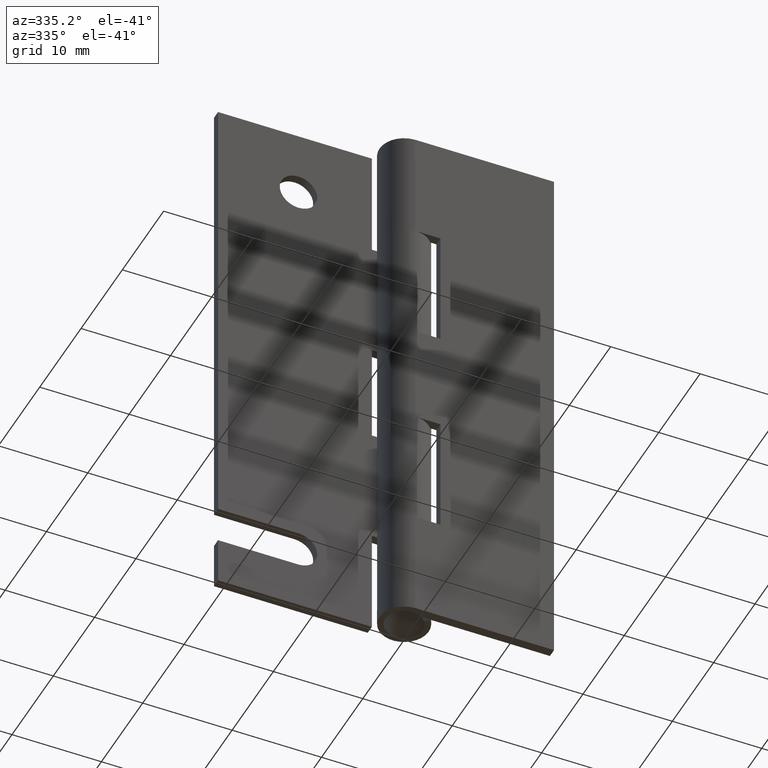
[diagram: clean part render]
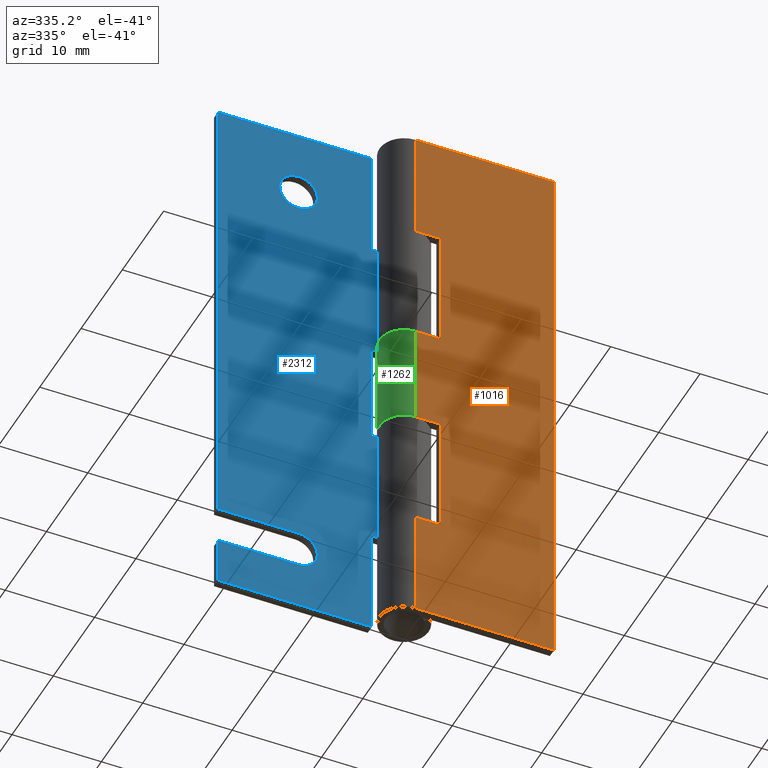
[diagram: same view with three faces highlighted in distinct colors, each labeled with its STEP entity id]
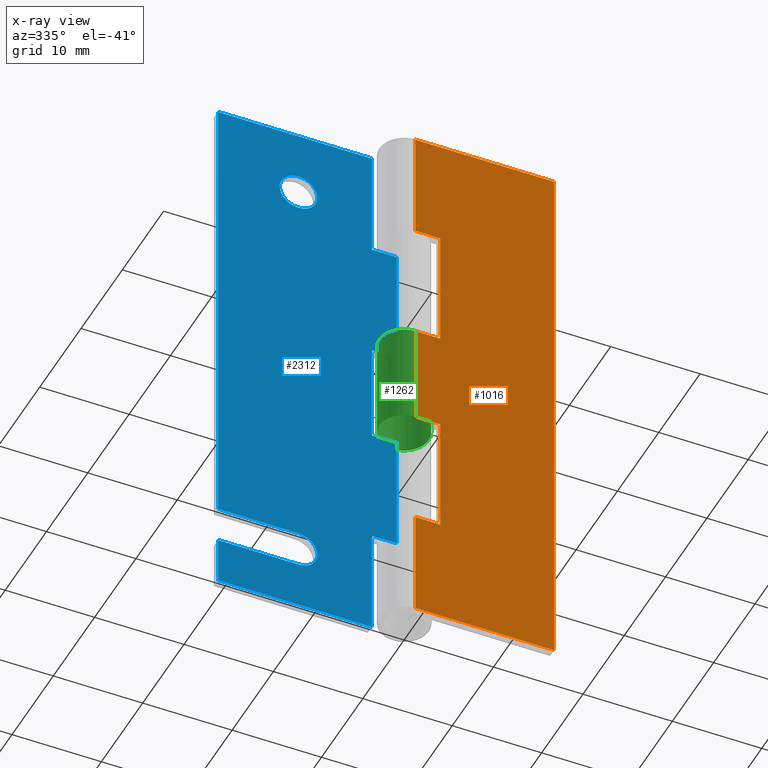
[diagram: x-ray of the same camera — body ghosted, the three highlighted faces saturated]
A machine part, auxiliary view with three faces highlighted in distinct colors.
The next image is the same camera in x-ray (body ghosted, the three faces saturated) — at least one of them is partly hidden behind the body in this view.
Their STEP definitions:

[orange] entity #1016 — the highlighted face is a freeform B-spline surface patch.
#430=CARTESIAN_POINT('',(0.0,-2.750000000000000,25.750000000000000));
#431=VERTEX_POINT('',#430);
#488=CARTESIAN_POINT('',(2.800000000000000,-2.750000000000000,25.750000000000000));
#489=VERTEX_POINT('',#488);
#495=CARTESIAN_POINT('',(2.800000000000000,-2.750000000000000,25.750000000000000));
#496=CARTESIAN_POINT('',(0.0,-2.750000000000000,25.750000000000000));
#497=QUASI_UNIFORM_CURVE('',1,(#495,#496),.UNSPECIFIED.,.F.,.U.);
#498=EDGE_CURVE('',#489,#431,#497,.T.);
#515=CARTESIAN_POINT('',(2.800000000000000,-2.750000000000000,12.250000000000000));
#516=VERTEX_POINT('',#515);
#522=CARTESIAN_POINT('',(2.800000000000000,-2.750000000000000,12.250000000000000));
#523=CARTESIAN_POINT('',(2.800000000000000,-2.750000000000000,25.750000000000000));
#524=QUASI_UNIFORM_CURVE('',1,(#522,#523),.UNSPECIFIED.,.F.,.U.);
#525=EDGE_CURVE('',#516,#489,#524,.T.);
#538=CARTESIAN_POINT('',(0.0,-2.750000000000000,12.250000000000000));
#539=VERTEX_POINT('',#538);
#559=CARTESIAN_POINT('',(0.0,-2.750000000000000,12.250000000000000));
#560=CARTESIAN_POINT('',(2.800000000000000,-2.750000000000000,12.250000000000000));
#561=QUASI_UNIFORM_CURVE('',1,(#559,#560),.UNSPECIFIED.,.F.,.U.);
#562=EDGE_CURVE('',#539,#516,#561,.T.);
#608=CARTESIAN_POINT('',(0.0,-2.750000000000000,37.250000000000000));
#609=VERTEX_POINT('',#608);
#629=CARTESIAN_POINT('',(2.800000000000000,-2.750000000000000,37.250000000000000));
#630=VERTEX_POINT('',#629);
#631=CARTESIAN_POINT('',(2.800000000000000,-2.750000000000000,37.250000000000000));
#632=CARTESIAN_POINT('',(0.0,-2.750000000000000,37.250000000000000));
#633=QUASI_UNIFORM_CURVE('',1,(#631,#632),.UNSPECIFIED.,.F.,.U.);
#634=EDGE_CURVE('',#630,#609,#633,.T.);
#692=CARTESIAN_POINT('',(2.800000000000000,-2.750000000000000,50.750000000000000));
#693=VERTEX_POINT('',#692);
#694=CARTESIAN_POINT('',(2.800000000000000,-2.750000000000000,50.750000000000000));
#695=CARTESIAN_POINT('',(2.800000000000000,-2.750000000000000,37.250000000000000));
#696=QUASI_UNIFORM_CURVE('',1,(#694,#695),.UNSPECIFIED.,.F.,.U.);
#697=EDGE_CURVE('',#693,#630,#696,.T.);
#712=CARTESIAN_POINT('',(0.0,-2.750000000000000,50.750000000000000));
#713=VERTEX_POINT('',#712);
#769=CARTESIAN_POINT('',(0.0,-2.750000000000000,50.750000000000000));
#770=CARTESIAN_POINT('',(2.800000000000000,-2.750000000000000,50.750000000000000));
#771=QUASI_UNIFORM_CURVE('',1,(#769,#770),.UNSPECIFIED.,.F.,.U.);
#772=EDGE_CURVE('',#713,#693,#771,.T.);
#812=CARTESIAN_POINT('',(15.500000000000000,-2.750000000000000,0.0));
#813=VERTEX_POINT('',#812);
#819=CARTESIAN_POINT('',(0.0,-2.750000000000000,0.0));
#820=VERTEX_POINT('',#819);
#821=CARTESIAN_POINT('',(15.500000000000000,-2.750000000000000,0.0));
#822=CARTESIAN_POINT('',(0.0,-2.750000000000000,0.0));
#823=QUASI_UNIFORM_CURVE('',1,(#821,#822),.UNSPECIFIED.,.F.,.U.);
#824=EDGE_CURVE('',#813,#820,#823,.T.);
#890=CARTESIAN_POINT('',(0.0,-2.750000000000000,63.0));
#891=VERTEX_POINT('',#890);
#911=CARTESIAN_POINT('',(15.500000000000000,-2.750000000000000,63.0));
#912=VERTEX_POINT('',#911);
#913=CARTESIAN_POINT('',(15.500000000000000,-2.750000000000000,63.0));
#914=CARTESIAN_POINT('',(0.0,-2.750000000000000,63.0));
#915=QUASI_UNIFORM_CURVE('',1,(#913,#914),.UNSPECIFIED.,.F.,.U.);
#916=EDGE_CURVE('',#912,#891,#915,.T.);
#977=CARTESIAN_POINT('',(15.500000000000000,-2.750000000000000,63.0));
#978=CARTESIAN_POINT('',(15.500000000000000,-2.750000000000000,0.0));
#979=QUASI_UNIFORM_CURVE('',1,(#977,#978),.UNSPECIFIED.,.F.,.U.);
#980=EDGE_CURVE('',#912,#813,#979,.T.);
#985=CARTESIAN_POINT('',(-0.774224969957992,-2.750000000000000,66.146849877893786));
#986=CARTESIAN_POINT('',(-0.774224969957992,-2.750000000000000,-3.146851567685451));
#987=CARTESIAN_POINT('',(16.274225385700390,-2.750000000000000,66.146849877893786));
#988=CARTESIAN_POINT('',(16.274225385700390,-2.750000000000000,-3.146851567685451));
#989=B_SPLINE_SURFACE_WITH_KNOTS('',1,1,((#985,#987),(#986,#988)),.UNSPECIFIED.,.F.,.F.,.U.,(2,2),(2,2),(0.0,69.293701445579231),(0.0,17.048450355658382),.UNSPECIFIED.);
#990=ORIENTED_EDGE('',*,*,#562,.F.);
#991=CARTESIAN_POINT('',(0.0,-2.750000000000000,12.250000000000000));
#992=CARTESIAN_POINT('',(0.0,-2.750000000000000,0.0));
#993=QUASI_UNIFORM_CURVE('',1,(#991,#992),.UNSPECIFIED.,.F.,.U.);
#994=EDGE_CURVE('',#539,#820,#993,.T.);
#995=ORIENTED_EDGE('',*,*,#994,.T.);
#996=ORIENTED_EDGE('',*,*,#824,.F.);
#997=ORIENTED_EDGE('',*,*,#980,.F.);
#998=ORIENTED_EDGE('',*,*,#916,.T.);
#999=CARTESIAN_POINT('',(0.0,-2.750000000000000,63.0));
#1000=CARTESIAN_POINT('',(0.0,-2.750000000000000,50.750000000000000));
#1001=QUASI_UNIFORM_CURVE('',1,(#999,#1000),.UNSPECIFIED.,.F.,.U.);
#1002=EDGE_CURVE('',#891,#713,#1001,.T.);
#1003=ORIENTED_EDGE('',*,*,#1002,.T.);
#1004=ORIENTED_EDGE('',*,*,#772,.T.);
#1005=ORIENTED_EDGE('',*,*,#697,.T.);
#1006=ORIENTED_EDGE('',*,*,#634,.T.);
#1007=CARTESIAN_POINT('',(0.0,-2.750000000000000,37.250000000000000));
#1008=CARTESIAN_POINT('',(0.0,-2.750000000000000,25.750000000000000));
#1009=QUASI_UNIFORM_CURVE('',1,(#1007,#1008),.UNSPECIFIED.,.F.,.U.);
#1010=EDGE_CURVE('',#609,#431,#1009,.T.);
#1011=ORIENTED_EDGE('',*,*,#1010,.T.);
#1012=ORIENTED_EDGE('',*,*,#498,.F.);
#1013=ORIENTED_EDGE('',*,*,#525,.F.);
#1014=EDGE_LOOP('',(#990,#995,#996,#997,#998,#1003,#1004,#1005,#1006,#1011,#1012,#1013));
#1015=FACE_OUTER_BOUND('',#1014,.T.);
#1016=ADVANCED_FACE('',(#1015),#989,.T.);

[blue] entity #2312 — the highlighted face is a freeform B-spline surface patch.
#1322=CARTESIAN_POINT('',(-11.0,1.750000000000030,57.600000000000001));
#1323=VERTEX_POINT('',#1322);
#1324=CARTESIAN_POINT('',(-13.093526400828949,1.750000000000030,55.664764101163406));
#1325=VERTEX_POINT('',#1324);
#1326=CARTESIAN_POINT('',(-11.0,1.750000000000030,57.600000000000001));
#1327=CARTESIAN_POINT('',(-12.941220032231215,1.750000000000030,57.600000000000001));
#1328=CARTESIAN_POINT('',(-13.093526400828949,1.750000000000031,55.664764101163414));
#1336=(BOUNDED_CURVE()B_SPLINE_CURVE(2,(#1326,#1327,#1328),.UNSPECIFIED.,.F.,.U.)B_SPLINE_CURVE_WITH_KNOTS((3,3),(0.0,0.236331300610668),.UNSPECIFIED.)CURVE()GEOMETRIC_REPRESENTATION_ITEM()RATIONAL_B_SPLINE_CURVE((1.0,0.723120658631087,0.969723356125697))REPRESENTATION_ITEM(''));
#1337=EDGE_CURVE('',#1323,#1325,#1336,.T.);
#1378=CARTESIAN_POINT('',(-8.906473599171051,1.750000000000030,55.335235898836594));
#1379=VERTEX_POINT('',#1378);
#1385=CARTESIAN_POINT('',(-8.906473599171051,1.750000000000030,55.335235898836586));
#1386=CARTESIAN_POINT('',(-8.900000000000002,1.750000000000030,55.417490775148330));
#1387=CARTESIAN_POINT('',(-8.900000000000000,1.750000000000030,55.500000000000000));
#1388=CARTESIAN_POINT('',(-8.900000000000000,1.750000000000031,57.600000000000001));
#1389=CARTESIAN_POINT('',(-11.0,1.750000000000030,57.600000000000001));
#1397=(BOUNDED_CURVE()B_SPLINE_CURVE(2,(#1385,#1386,#1387,#1388,#1389),.UNSPECIFIED.,.F.,.U.)B_SPLINE_CURVE_WITH_KNOTS((3,2,3),(0.736331300610669,0.750000000000000,1.0),.UNSPECIFIED.)CURVE()GEOMETRIC_REPRESENTATION_ITEM()RATIONAL_B_SPLINE_CURVE((0.969723356125698,0.983986122555461,1.0,0.707106781186548,1.0))REPRESENTATION_ITEM(''));
#1398=EDGE_CURVE('',#1379,#1323,#1397,.T.);
#1421=CARTESIAN_POINT('',(-11.0,1.750000000000030,53.400000000000013));
#1422=VERTEX_POINT('',#1421);
#1423=CARTESIAN_POINT('',(-13.093526400828946,1.750000000000030,55.664764101163414));
#1424=CARTESIAN_POINT('',(-13.099999999999996,1.750000000000030,55.582509224851670));
#1425=CARTESIAN_POINT('',(-13.100000000000000,1.750000000000030,55.500000000000000));
#1426=CARTESIAN_POINT('',(-13.100000000000001,1.750000000000031,53.399999999999999));
#1427=CARTESIAN_POINT('',(-11.0,1.750000000000030,53.400000000000013));
#1435=(BOUNDED_CURVE()B_SPLINE_CURVE(2,(#1423,#1424,#1425,#1426,#1427),.UNSPECIFIED.,.F.,.U.)B_SPLINE_CURVE_WITH_KNOTS((3,2,3),(0.236331300610668,0.250000000000000,0.500000000000000),.UNSPECIFIED.)CURVE()GEOMETRIC_REPRESENTATION_ITEM()RATIONAL_B_SPLINE_CURVE((0.969723356125697,0.983986122555461,1.0,0.707106781186548,1.0))REPRESENTATION_ITEM(''));
#1436=EDGE_CURVE('',#1325,#1422,#1435,.T.);
#1438=CARTESIAN_POINT('',(-11.0,1.750000000000030,53.400000000000013));
#1439=CARTESIAN_POINT('',(-9.058779967768787,1.750000000000030,53.400000000000013));
#1440=CARTESIAN_POINT('',(-8.906473599171051,1.750000000000030,55.335235898836586));
#1448=(BOUNDED_CURVE()B_SPLINE_CURVE(2,(#1438,#1439,#1440),.UNSPECIFIED.,.F.,.U.)B_SPLINE_CURVE_WITH_KNOTS((3,3),(0.500000000000000,0.736331300610668),.UNSPECIFIED.)CURVE()GEOMETRIC_REPRESENTATION_ITEM()RATIONAL_B_SPLINE_CURVE((1.0,0.723120658631087,0.969723356125697))REPRESENTATION_ITEM(''));
#1449=EDGE_CURVE('',#1422,#1379,#1448,.T.);
#1491=CARTESIAN_POINT('',(-2.800000000000000,1.750000000000030,25.750000000000000));
#1492=VERTEX_POINT('',#1491);
#1493=CARTESIAN_POINT('',(0.0,1.750000000000000,25.750000000000000));
#1494=VERTEX_POINT('',#1493);
#1495=CARTESIAN_POINT('',(-2.800000000000000,1.750000000000030,25.750000000000000));
#1496=CARTESIAN_POINT('',(0.0,1.750000000000000,25.750000000000000));
#1497=QUASI_UNIFORM_CURVE('',1,(#1495,#1496),.UNSPECIFIED.,.F.,.U.);
#1498=EDGE_CURVE('',#1492,#1494,#1497,.T.);
#1569=CARTESIAN_POINT('',(0.0,1.750000000000000,37.250000000000000));
#1570=VERTEX_POINT('',#1569);
#1571=CARTESIAN_POINT('',(-2.800000000000000,1.750000000000030,37.250000000000000));
#1572=VERTEX_POINT('',#1571);
#1573=CARTESIAN_POINT('',(0.0,1.750000000000000,37.250000000000000));
#1574=CARTESIAN_POINT('',(-2.800000000000000,1.750000000000030,37.250000000000000));
#1575=QUASI_UNIFORM_CURVE('',1,(#1573,#1574),.UNSPECIFIED.,.F.,.U.);
#1576=EDGE_CURVE('',#1570,#1572,#1575,.T.);
#1647=CARTESIAN_POINT('',(-2.800000000000000,1.750000000000030,37.250000000000000));
#1648=CARTESIAN_POINT('',(-2.800000000000000,1.750000000000030,25.750000000000000));
#1649=QUASI_UNIFORM_CURVE('',1,(#1647,#1648),.UNSPECIFIED.,.F.,.U.);
#1650=EDGE_CURVE('',#1572,#1492,#1649,.T.);
#1667=CARTESIAN_POINT('',(-2.800000000000000,1.750000000000030,12.250000000000000));
#1668=VERTEX_POINT('',#1667);
#1669=CARTESIAN_POINT('',(-2.800000000000000,1.750000000000000,0.0));
#1670=VERTEX_POINT('',#1669);
#1671=CARTESIAN_POINT('',(-2.800000000000000,1.750000000000030,12.250000000000000));
#1672=CARTESIAN_POINT('',(-2.800000000000000,1.750000000000000,0.0));
#1673=QUASI_UNIFORM_CURVE('',1,(#1671,#1672),.UNSPECIFIED.,.F.,.U.);
#1674=EDGE_CURVE('',#1668,#1670,#1673,.T.);
#1703=CARTESIAN_POINT('',(0.0,1.750000000000000,12.250000000000000));
#1704=VERTEX_POINT('',#1703);
#1705=CARTESIAN_POINT('',(0.0,1.750000000000000,12.250000000000000));
#1706=CARTESIAN_POINT('',(-2.800000000000000,1.750000000000030,12.250000000000000));
#1707=QUASI_UNIFORM_CURVE('',1,(#1705,#1706),.UNSPECIFIED.,.F.,.U.);
#1708=EDGE_CURVE('',#1704,#1668,#1707,.T.);
#1773=CARTESIAN_POINT('',(-2.800000000000000,1.750000000000030,63.0));
#1774=VERTEX_POINT('',#1773);
#1775=CARTESIAN_POINT('',(-2.800000000000000,1.750000000000030,50.750000000000000));
#1776=VERTEX_POINT('',#1775);
#1777=CARTESIAN_POINT('',(-2.800000000000000,1.750000000000030,63.0));
#1778=CARTESIAN_POINT('',(-2.800000000000000,1.750000000000030,50.750000000000000));
#1779=QUASI_UNIFORM_CURVE('',1,(#1777,#1778),.UNSPECIFIED.,.F.,.U.);
#1780=EDGE_CURVE('',#1774,#1776,#1779,.T.);
#1809=CARTESIAN_POINT('',(0.0,1.750000000000000,50.750000000000000));
#1810=VERTEX_POINT('',#1809);
#1811=CARTESIAN_POINT('',(-2.800000000000000,1.750000000000030,50.750000000000000));
#1812=CARTESIAN_POINT('',(0.0,1.750000000000000,50.750000000000000));
#1813=QUASI_UNIFORM_CURVE('',1,(#1811,#1812),.UNSPECIFIED.,.F.,.U.);
#1814=EDGE_CURVE('',#1776,#1810,#1813,.T.);
#1888=CARTESIAN_POINT('',(-20.0,1.750000000000030,5.400000000000000));
#1889=VERTEX_POINT('',#1888);
#1895=CARTESIAN_POINT('',(-11.0,1.750000000000030,5.400000000000000));
#1896=VERTEX_POINT('',#1895);
#1897=CARTESIAN_POINT('',(-20.0,1.750000000000030,5.400000000000000));
#1898=CARTESIAN_POINT('',(-11.0,1.750000000000030,5.400000000000000));
#1899=QUASI_UNIFORM_CURVE('',1,(#1897,#1898),.UNSPECIFIED.,.F.,.U.);
#1900=EDGE_CURVE('',#1889,#1896,#1899,.T.);
#1924=CARTESIAN_POINT('',(-11.0,1.750000000000030,9.599999999999810));
#1925=VERTEX_POINT('',#1924);
#1931=CARTESIAN_POINT('',(-20.0,1.750000000000030,9.599999999999810));
#1932=VERTEX_POINT('',#1931);
#1933=CARTESIAN_POINT('',(-11.0,1.750000000000030,9.599999999999810));
#1934=CARTESIAN_POINT('',(-20.0,1.750000000000030,9.599999999999810));
#1935=QUASI_UNIFORM_CURVE('',1,(#1933,#1934),.UNSPECIFIED.,.F.,.U.);
#1936=EDGE_CURVE('',#1925,#1932,#1935,.T.);
#1980=CARTESIAN_POINT('',(-11.0,1.750000000000030,5.400000000000000));
#1981=CARTESIAN_POINT('',(-8.900000000000000,1.750000000000031,5.400000000000000));
#1982=CARTESIAN_POINT('',(-8.900000000000000,1.750000000000030,7.500000000000000));
#1983=CARTESIAN_POINT('',(-8.900000000000000,1.750000000000031,9.600000000000000));
#1984=CARTESIAN_POINT('',(-11.0,1.750000000000030,9.599999999999810));
#1992=(BOUNDED_CURVE()B_SPLINE_CURVE(2,(#1980,#1981,#1982,#1983,#1984),.UNSPECIFIED.,.F.,.U.)B_SPLINE_CURVE_WITH_KNOTS((3,2,3),(0.0,0.500000000000000,1.0),.UNSPECIFIED.)CURVE()GEOMETRIC_REPRESENTATION_ITEM()RATIONAL_B_SPLINE_CURVE((1.0,0.707106781186548,1.0,0.707106781186548,1.0))REPRESENTATION_ITEM(''));
#1993=EDGE_CURVE('',#1896,#1925,#1992,.T.);
#2012=CARTESIAN_POINT('',(-20.0,1.750000000000000,0.0));
#2013=VERTEX_POINT('',#2012);
#2019=CARTESIAN_POINT('',(-20.0,1.750000000000030,5.400000000000000));
#2020=CARTESIAN_POINT('',(-20.0,1.750000000000000,0.0));
#2021=QUASI_UNIFORM_CURVE('',1,(#2019,#2020),.UNSPECIFIED.,.F.,.U.);
#2022=EDGE_CURVE('',#1889,#2013,#2021,.T.);
#2033=CARTESIAN_POINT('',(-20.0,1.750000000000000,63.0));
#2034=VERTEX_POINT('',#2033);
#2035=CARTESIAN_POINT('',(-20.0,1.750000000000000,63.0));
#2036=CARTESIAN_POINT('',(-20.0,1.750000000000030,9.599999999999810));
#2037=QUASI_UNIFORM_CURVE('',1,(#2035,#2036),.UNSPECIFIED.,.F.,.U.);
#2038=EDGE_CURVE('',#2034,#1932,#2037,.T.);
#2067=CARTESIAN_POINT('',(-20.0,1.750000000000000,63.0));
#2068=CARTESIAN_POINT('',(-2.800000000000000,1.750000000000030,63.0));
#2069=QUASI_UNIFORM_CURVE('',1,(#2067,#2068),.UNSPECIFIED.,.F.,.U.);
#2070=EDGE_CURVE('',#2034,#1774,#2069,.T.);
#2086=CARTESIAN_POINT('',(-20.0,1.750000000000000,0.0));
#2087=CARTESIAN_POINT('',(-2.800000000000000,1.750000000000000,0.0));
#2088=QUASI_UNIFORM_CURVE('',1,(#2086,#2087),.UNSPECIFIED.,.F.,.U.);
#2089=EDGE_CURVE('',#2013,#1670,#2088,.T.);
#2236=CARTESIAN_POINT('',(0.0,1.750000000000000,25.750000000000000));
#2237=CARTESIAN_POINT('',(0.0,1.750000000000000,12.250000000000000));
#2238=QUASI_UNIFORM_CURVE('',1,(#2236,#2237),.UNSPECIFIED.,.F.,.U.);
#2239=EDGE_CURVE('',#1494,#1704,#2238,.T.);
#2275=CARTESIAN_POINT('',(0.0,1.750000000000000,50.750000000000000));
#2276=CARTESIAN_POINT('',(0.0,1.750000000000000,37.250000000000000));
#2277=QUASI_UNIFORM_CURVE('',1,(#2275,#2276),.UNSPECIFIED.,.F.,.U.);
#2278=EDGE_CURVE('',#1810,#1570,#2277,.T.);
#2283=CARTESIAN_POINT('',(-20.998999961236120,1.750000000000000,-3.146849877893774));
#2284=CARTESIAN_POINT('',(-20.998999961236120,1.750000000000000,66.146851567685474));
#2285=CARTESIAN_POINT('',(0.999000497677922,1.750000000000000,-3.146849877893774));
#2286=CARTESIAN_POINT('',(0.999000497677922,1.750000000000000,66.146851567685474));
#2287=B_SPLINE_SURFACE_WITH_KNOTS('',1,1,((#2283,#2285),(#2284,#2286)),.UNSPECIFIED.,.F.,.F.,.U.,(2,2),(2,2),(0.0,69.293701445579245),(0.0,21.998000458914039),.UNSPECIFIED.);
#2288=ORIENTED_EDGE('',*,*,#1576,.F.);
#2289=ORIENTED_EDGE('',*,*,#2278,.F.);
#2290=ORIENTED_EDGE('',*,*,#1814,.F.);
#2291=ORIENTED_EDGE('',*,*,#1780,.F.);
#2292=ORIENTED_EDGE('',*,*,#2070,.F.);
#2293=ORIENTED_EDGE('',*,*,#2038,.T.);
#2294=ORIENTED_EDGE('',*,*,#1936,.F.);
#2295=ORIENTED_EDGE('',*,*,#1993,.F.);
#2296=ORIENTED_EDGE('',*,*,#1900,.F.);
#2297=ORIENTED_EDGE('',*,*,#2022,.T.);
#2298=ORIENTED_EDGE('',*,*,#2089,.T.);
#2299=ORIENTED_EDGE('',*,*,#1674,.F.);
#2300=ORIENTED_EDGE('',*,*,#1708,.F.);
#2301=ORIENTED_EDGE('',*,*,#2239,.F.);
#2302=ORIENTED_EDGE('',*,*,#1498,.F.);
#2303=ORIENTED_EDGE('',*,*,#1650,.F.);
#2304=EDGE_LOOP('',(#2288,#2289,#2290,#2291,#2292,#2293,#2294,#2295,#2296,#2297,#2298,#2299,#2300,#2301,#2302,#2303));
#2305=FACE_OUTER_BOUND('',#2304,.T.);
#2306=ORIENTED_EDGE('',*,*,#1449,.F.);
#2307=ORIENTED_EDGE('',*,*,#1436,.F.);
#2308=ORIENTED_EDGE('',*,*,#1337,.F.);
#2309=ORIENTED_EDGE('',*,*,#1398,.F.);
#2310=EDGE_LOOP('',(#2306,#2307,#2308,#2309));
#2311=FACE_BOUND('',#2310,.T.);
#2312=ADVANCED_FACE('',(#2305,#2311),#2287,.F.);

[green] entity #1262 — the highlighted face is a freeform B-spline surface patch.
#430=CARTESIAN_POINT('',(0.0,-2.750000000000000,25.750000000000000));
#431=VERTEX_POINT('',#430);
#432=CARTESIAN_POINT('',(2.161596632121730,-1.700000000000000,25.750000000000000));
#433=VERTEX_POINT('',#432);
#434=CARTESIAN_POINT('',(0.0,-2.750000000000000,25.750000000000000));
#435=CARTESIAN_POINT('',(-2.189246665130535,-2.750000000000000,25.749999999999996));
#436=CARTESIAN_POINT('',(-2.680012078636981,-0.616469997939795,25.750000000000000));
#437=CARTESIAN_POINT('',(-3.170777492143425,1.517060004120411,25.749999999999996));
#438=CARTESIAN_POINT('',(-1.201561484069792,2.473610721192807,25.750000000000000));
#439=CARTESIAN_POINT('',(0.767654524003843,3.430161438265204,25.749999999999996));
#440=CARTESIAN_POINT('',(2.141301820012224,1.725493122447127,25.750000000000000));
#441=CARTESIAN_POINT('',(3.514949116020605,0.020824806629051,25.749999999999996));
#442=CARTESIAN_POINT('',(2.161596632121729,-1.700000000000000,25.750000000000000));
#450=(BOUNDED_CURVE()B_SPLINE_CURVE(2,(#434,#435,#436,#437,#438,#439,#440,#441,#442),.UNSPECIFIED.,.F.,.U.)B_SPLINE_CURVE_WITH_KNOTS((3,2,2,2,3),(0.0,0.250000000000000,0.500000000000000,0.750000000000000,1.0),.UNSPECIFIED.)CURVE()GEOMETRIC_REPRESENTATION_ITEM()RATIONAL_B_SPLINE_CURVE((1.0,0.782358903682237,1.0,0.782358903682237,1.0,0.782358903682237,1.0,0.782358903682237,1.0))REPRESENTATION_ITEM(''));
#451=EDGE_CURVE('',#431,#433,#450,.T.);
#606=CARTESIAN_POINT('',(2.161596632121730,-1.700000000000000,37.250000000000000));
#607=VERTEX_POINT('',#606);
#608=CARTESIAN_POINT('',(0.0,-2.750000000000000,37.250000000000000));
#609=VERTEX_POINT('',#608);
#610=CARTESIAN_POINT('',(2.161596632121728,-1.700000000000001,37.250000000000000));
#611=CARTESIAN_POINT('',(3.514949116020606,0.020824806629051,37.250000000000007));
#612=CARTESIAN_POINT('',(2.141301820012224,1.725493122447127,37.250000000000000));
#613=CARTESIAN_POINT('',(0.767654524003844,3.430161438265202,37.250000000000007));
#614=CARTESIAN_POINT('',(-1.201561484069791,2.473610721192808,37.250000000000000));
#615=CARTESIAN_POINT('',(-3.170777492143426,1.517060004120412,37.250000000000007));
#616=CARTESIAN_POINT('',(-2.680012078636981,-0.616469997939795,37.250000000000000));
#617=CARTESIAN_POINT('',(-2.189246665130535,-2.750000000000000,37.250000000000007));
#618=CARTESIAN_POINT('',(0.0,-2.750000000000000,37.250000000000000));
#626=(BOUNDED_CURVE()B_SPLINE_CURVE(2,(#610,#611,#612,#613,#614,#615,#616,#617,#618),.UNSPECIFIED.,.F.,.U.)B_SPLINE_CURVE_WITH_KNOTS((3,2,2,2,3),(0.0,0.250000000000000,0.500000000000000,0.750000000000000,1.0),.UNSPECIFIED.)CURVE()GEOMETRIC_REPRESENTATION_ITEM()RATIONAL_B_SPLINE_CURVE((1.0,0.782358903682237,1.0,0.782358903682237,1.0,0.782358903682237,1.0,0.782358903682237,1.0))REPRESENTATION_ITEM(''));
#627=EDGE_CURVE('',#607,#609,#626,.T.);
#1007=CARTESIAN_POINT('',(0.0,-2.750000000000000,37.250000000000000));
#1008=CARTESIAN_POINT('',(0.0,-2.750000000000000,25.750000000000000));
#1009=QUASI_UNIFORM_CURVE('',1,(#1007,#1008),.UNSPECIFIED.,.F.,.U.);
#1010=EDGE_CURVE('',#609,#431,#1009,.T.);
#1056=CARTESIAN_POINT('',(2.161596632121730,-1.700000000000000,37.250000000000000));
#1057=CARTESIAN_POINT('',(2.161596632121730,-1.700000000000000,25.750000000000000));
#1058=QUASI_UNIFORM_CURVE('',1,(#1056,#1057),.UNSPECIFIED.,.F.,.U.);
#1059=EDGE_CURVE('',#607,#433,#1058,.T.);
#1230=CARTESIAN_POINT('',(2.091116405400085,-1.785982132908004,37.537500000000009));
#1231=CARTESIAN_POINT('',(2.091116405400085,-1.785982132908004,25.455312500000002));
#1232=CARTESIAN_POINT('',(3.556834062676618,-0.069847249842288,37.537500000000009));
#1233=CARTESIAN_POINT('',(3.556834062676618,-0.069847249842288,25.455312500000002));
#1234=CARTESIAN_POINT('',(2.159621559922048,1.702508360602043,37.537500000000009));
#1235=CARTESIAN_POINT('',(2.159621559922048,1.702508360602043,25.455312500000002));
#1236=CARTESIAN_POINT('',(0.762409057167478,3.474863971046374,37.537500000000009));
#1237=CARTESIAN_POINT('',(0.762409057167478,3.474863971046374,25.455312500000002));
#1238=CARTESIAN_POINT('',(-1.248473874283754,2.450267941518011,37.537500000000009));
#1239=CARTESIAN_POINT('',(-1.248473874283754,2.450267941518011,25.455312500000002));
#1240=CARTESIAN_POINT('',(-3.259356805734985,1.425671911989647,37.537500000000009));
#1241=CARTESIAN_POINT('',(-3.259356805734985,1.425671911989647,25.455312500000002));
#1242=CARTESIAN_POINT('',(-2.646751900247529,-0.746461237128954,37.537500000000009));
#1243=CARTESIAN_POINT('',(-2.646751900247529,-0.746461237128954,25.455312500000002));
#1244=CARTESIAN_POINT('',(-2.034146994760073,-2.918594386247555,37.537500000000009));
#1245=CARTESIAN_POINT('',(-2.034146994760073,-2.918594386247555,25.455312500000002));
#1246=CARTESIAN_POINT('',(0.215762513251574,-2.741522667766101,37.537500000000009));
#1247=CARTESIAN_POINT('',(0.215762513251574,-2.741522667766101,25.455312500000002));
#1255=(BOUNDED_SURFACE()B_SPLINE_SURFACE(1,2,((#1230,#1232,#1234,#1236,#1238,#1240,#1242,#1244,#1246),(#1231,#1233,#1235,#1237,#1239,#1241,#1243,#1245,#1247)),.UNSPECIFIED.,.F.,.F.,.U.)B_SPLINE_SURFACE_WITH_KNOTS((2,2),(3,2,2,2,3),(0.0,12.082187500000011),(0.0,3.935862934459764,7.871725868919529,11.807588803379289,15.743451737839059),.UNSPECIFIED.)GEOMETRIC_REPRESENTATION_ITEM()RATIONAL_B_SPLINE_SURFACE(((1.0,0.773010453362737,1.0,0.773010453362737,1.0,0.773010453362737,1.0,0.773010453362737,1.0),(1.0,0.773010453362737,1.0,0.773010453362737,1.0,0.773010453362737,1.0,0.773010453362737,1.0)))REPRESENTATION_ITEM('')SURFACE());
#1256=ORIENTED_EDGE('',*,*,#451,.F.);
#1257=ORIENTED_EDGE('',*,*,#1010,.F.);
#1258=ORIENTED_EDGE('',*,*,#627,.F.);
#1259=ORIENTED_EDGE('',*,*,#1059,.T.);
#1260=EDGE_LOOP('',(#1256,#1257,#1258,#1259));
#1261=FACE_OUTER_BOUND('',#1260,.T.);
#1262=ADVANCED_FACE('',(#1261),#1255,.T.);